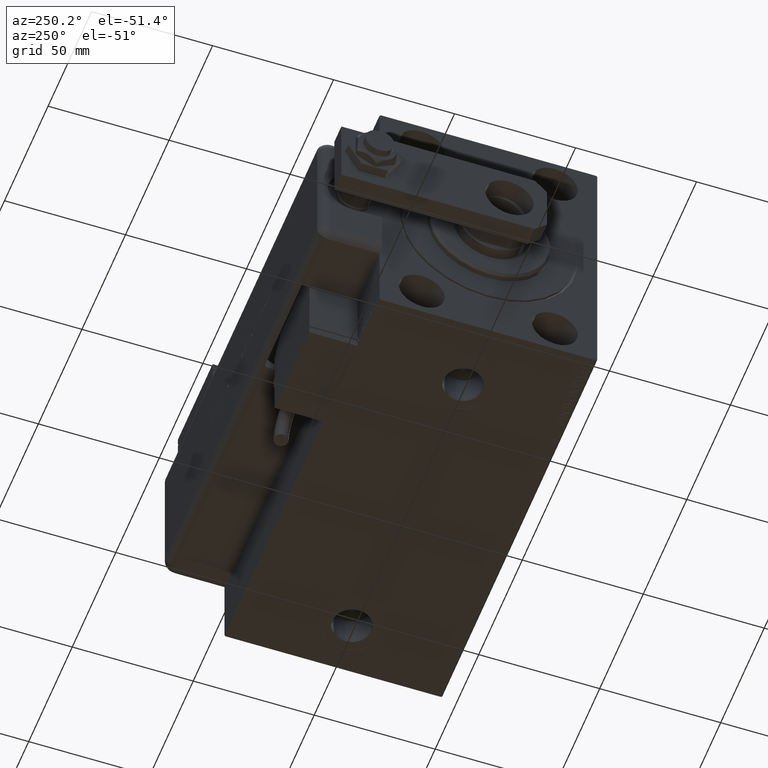
[diagram: clean part render]
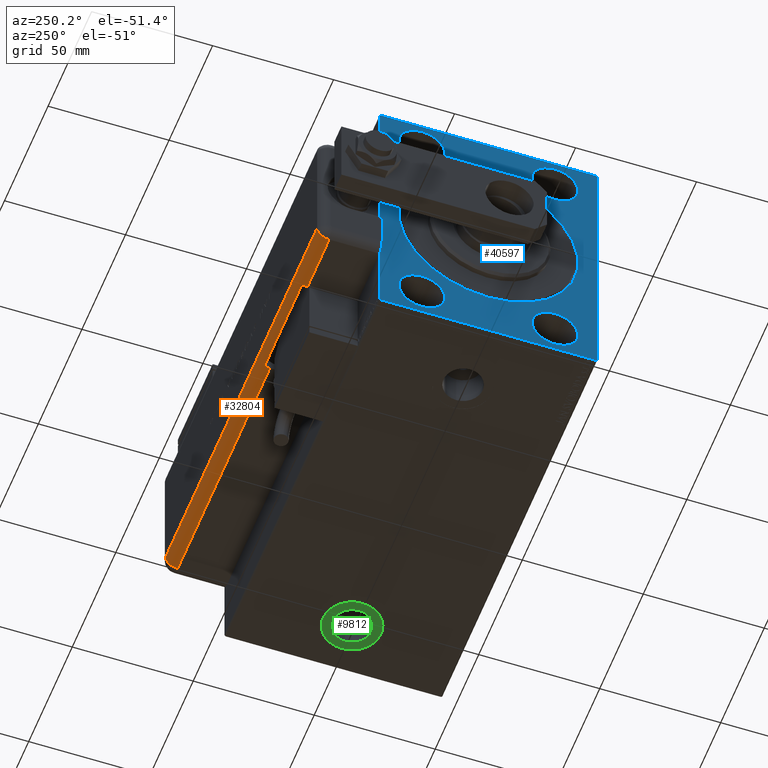
[diagram: same view with three faces highlighted in distinct colors, each labeled with its STEP entity id]
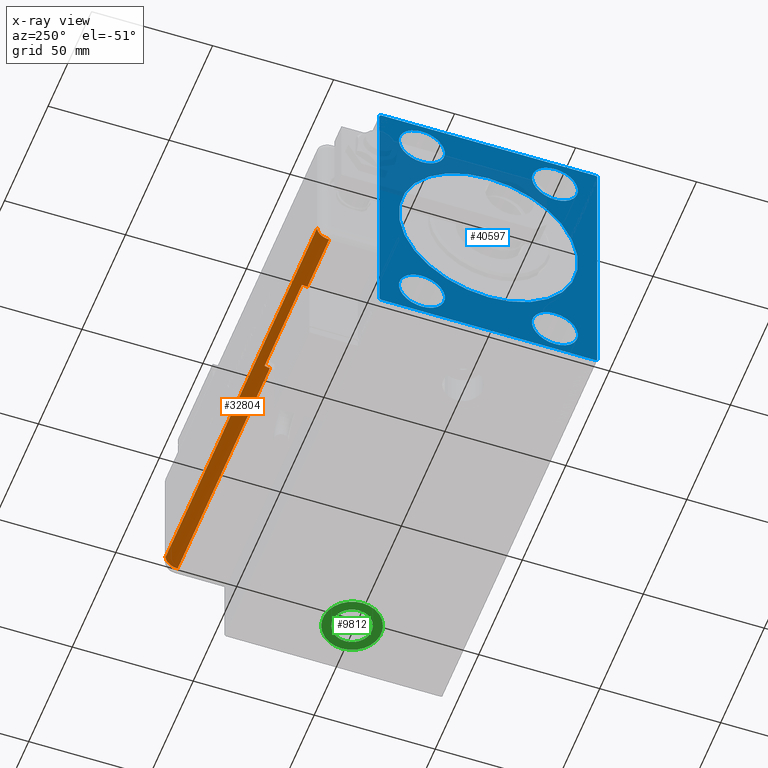
[diagram: x-ray of the same camera — body ghosted, the three highlighted faces saturated]
A machine part, auxiliary view with three faces highlighted in distinct colors.
The next image is the same camera in x-ray (body ghosted, the three faces saturated) — at least one of them is partly hidden behind the body in this view.
Their STEP definitions:

[orange] entity #32804 — the highlighted cylindrical surface (edge-blend (fillet) strip) has radius 5 mm, axis along (1, -0, -0).
#244 = EDGE_CURVE ( 'NONE', #31058, #17575, #6631, .T. ) ;
#3024 = VECTOR ( 'NONE', #16790, 1000.000000000000000 ) ;
#4208 = DIRECTION ( 'NONE',  ( -1.000000000000000000, -3.469446951953613400E-15, 0.000000000000000000 ) ) ;
#4451 = AXIS2_PLACEMENT_3D ( 'NONE', #19884, #38740, #52978 ) ;
#4942 = DIRECTION ( 'NONE',  ( 1.000000000000000000, 0.000000000000000000, 0.000000000000000000 ) ) ;
#5122 = DIRECTION ( 'NONE',  ( -0.000000000000000000, -0.000000000000000000, 1.000000000000000000 ) ) ;
#5365 = VERTEX_POINT ( 'NONE', #35357 ) ;
#6402 = ORIENTED_EDGE ( 'NONE', *, *, #39358, .F. ) ;
#6631 = LINE ( 'NONE', #30991, #3024 ) ;
#7991 = DIRECTION ( 'NONE',  ( -1.000000000000000000, 0.000000000000000000, 0.000000000000000000 ) ) ;
#8177 = LINE ( 'NONE', #45844, #55036 ) ;
#8446 = EDGE_CURVE ( 'NONE', #25036, #5365, #25777, .T. ) ;
#10067 = EDGE_CURVE ( 'NONE', #19808, #31058, #51580, .T. ) ;
#10353 = ORIENTED_EDGE ( 'NONE', *, *, #8446, .F. ) ;
#13773 = CARTESIAN_POINT ( 'NONE',  ( -24.00000000000000000, 20.79999999999998650, 111.0000000000000000 ) ) ;
#15585 = ORIENTED_EDGE ( 'NONE', *, *, #50503, .T. ) ;
#15873 = EDGE_CURVE ( 'NONE', #17575, #30170, #18215, .T. ) ;
#16790 = DIRECTION ( 'NONE',  ( 0.000000000000000000, 0.000000000000000000, -1.000000000000000000 ) ) ;
#17575 = VERTEX_POINT ( 'NONE', #21227 ) ;
#17825 = DIRECTION ( 'NONE',  ( 0.000000000000000000, 0.000000000000000000, -1.000000000000000000 ) ) ;
#18215 = CIRCLE ( 'NONE', #58773, 5.000000000000000888 ) ;
#18354 = EDGE_CURVE ( 'NONE', #43655, #19808, #53100, .T. ) ;
#19808 = VERTEX_POINT ( 'NONE', #27664 ) ;
#19884 = CARTESIAN_POINT ( 'NONE',  ( -24.00000000000000000, 20.79999999999998650, 5.000000000000004441 ) ) ;
#21227 = CARTESIAN_POINT ( 'NONE',  ( -28.48998886412872622, 22.99999999999998934, 111.0000000000000000 ) ) ;
#21721 = ORIENTED_EDGE ( 'NONE', *, *, #15873, .F. ) ;
#23081 = DIRECTION ( 'NONE',  ( -0.000000000000000000, -0.000000000000000000, 1.000000000000000000 ) ) ;
#23141 = CIRCLE ( 'NONE', #4451, 5.000000000000000888 ) ;
#23985 = EDGE_CURVE ( 'NONE', #30170, #43517, #8177, .T. ) ;
#25036 = VERTEX_POINT ( 'NONE', #56725 ) ;
#25777 = LINE ( 'NONE', #44648, #52507 ) ;
#26577 = ORIENTED_EDGE ( 'NONE', *, *, #10067, .F. ) ;
#27069 = FACE_OUTER_BOUND ( 'NONE', #30153, .T. ) ;
#27664 = CARTESIAN_POINT ( 'NONE',  ( -28.99999999999999645, 20.79999999999998650, 154.0000000000000000 ) ) ;
#30153 = EDGE_LOOP ( 'NONE', ( #21721, #46695, #26577, #52616, #6402, #10353, #15585, #30923 ) ) ;
#30170 = VERTEX_POINT ( 'NONE', #31036 ) ;
#30923 = ORIENTED_EDGE ( 'NONE', *, *, #23985, .F. ) ;
#30991 = CARTESIAN_POINT ( 'NONE',  ( -28.48998886412872622, 22.99999999999998934, 179.0000000000000000 ) ) ;
#31036 = CARTESIAN_POINT ( 'NONE',  ( -28.99999999999999645, 20.79999999999998650, 111.0000000000000000 ) ) ;
#31058 = VERTEX_POINT ( 'NONE', #39486 ) ;
#32804 = ADVANCED_FACE ( 'NONE', ( #27069 ), #45945, .T. ) ;
#33302 = CARTESIAN_POINT ( 'NONE',  ( -28.99999999999999645, 20.79999999999998650, 5.000000000000004441 ) ) ;
#34221 = CARTESIAN_POINT ( 'NONE',  ( -28.99999999999999645, 20.79999999999998650, 179.0000000000000000 ) ) ;
#35357 = CARTESIAN_POINT ( 'NONE',  ( -24.00000000000000000, 25.79999999999998295, 179.0000000000000000 ) ) ;
#37505 = DIRECTION ( 'NONE',  ( -0.000000000000000000, -0.000000000000000000, 1.000000000000000000 ) ) ;
#38740 = DIRECTION ( 'NONE',  ( -0.000000000000000000, -0.000000000000000000, 1.000000000000000000 ) ) ;
#39358 = EDGE_CURVE ( 'NONE', #5365, #43655, #56444, .T. ) ;
#39486 = CARTESIAN_POINT ( 'NONE',  ( -28.48998886412872622, 22.99999999999998934, 154.0000000000000000 ) ) ;
#39693 = AXIS2_PLACEMENT_3D ( 'NONE', #47255, #52800, #4942 ) ;
#39784 = DIRECTION ( 'NONE',  ( 0.000000000000000000, 0.000000000000000000, -1.000000000000000000 ) ) ;
#40199 = VECTOR ( 'NONE', #39784, 1000.000000000000000 ) ;
#41302 = CARTESIAN_POINT ( 'NONE',  ( -24.00000000000000000, 20.79999999999998650, 179.0000000000000000 ) ) ;
#43517 = VERTEX_POINT ( 'NONE', #33302 ) ;
#43655 = VERTEX_POINT ( 'NONE', #54597 ) ;
#44648 = CARTESIAN_POINT ( 'NONE',  ( -24.00000000000000000, 25.79999999999998295, 179.0000000000000000 ) ) ;
#45565 = DIRECTION ( 'NONE',  ( -1.000000000000000000, 0.000000000000000000, 0.000000000000000000 ) ) ;
#45844 = CARTESIAN_POINT ( 'NONE',  ( -28.99999999999999645, 20.79999999999998650, 179.0000000000000000 ) ) ;
#45945 = CYLINDRICAL_SURFACE ( 'NONE', #50264, 5.000000000000000888 ) ;
#46539 = AXIS2_PLACEMENT_3D ( 'NONE', #55875, #23081, #7991 ) ;
#46695 = ORIENTED_EDGE ( 'NONE', *, *, #244, .F. ) ;
#47255 = CARTESIAN_POINT ( 'NONE',  ( -24.00000000000000000, 20.79999999999998650, 154.0000000000000000 ) ) ;
#50264 = AXIS2_PLACEMENT_3D ( 'NONE', #41302, #17825, #45565 ) ;
#50503 = EDGE_CURVE ( 'NONE', #25036, #43517, #23141, .T. ) ;
#51580 = CIRCLE ( 'NONE', #39693, 5.000000000000000888 ) ;
#52507 = VECTOR ( 'NONE', #37505, 1000.000000000000000 ) ;
#52616 = ORIENTED_EDGE ( 'NONE', *, *, #18354, .F. ) ;
#52800 = DIRECTION ( 'NONE',  ( 0.000000000000000000, -0.000000000000000000, -1.000000000000000000 ) ) ;
#52978 = DIRECTION ( 'NONE',  ( -1.000000000000000000, 0.000000000000000000, 0.000000000000000000 ) ) ;
#53100 = LINE ( 'NONE', #34221, #40199 ) ;
#54597 = CARTESIAN_POINT ( 'NONE',  ( -28.99999999999999645, 20.79999999999998650, 179.0000000000000000 ) ) ;
#55036 = VECTOR ( 'NONE', #60079, 1000.000000000000000 ) ;
#55875 = CARTESIAN_POINT ( 'NONE',  ( -24.00000000000000000, 20.79999999999998650, 179.0000000000000000 ) ) ;
#56444 = CIRCLE ( 'NONE', #46539, 5.000000000000000888 ) ;
#56725 = CARTESIAN_POINT ( 'NONE',  ( -24.00000000000000000, 25.79999999999998295, 5.000000000000004441 ) ) ;
#58773 = AXIS2_PLACEMENT_3D ( 'NONE', #13773, #5122, #4208 ) ;
#60079 = DIRECTION ( 'NONE',  ( 0.000000000000000000, 0.000000000000000000, -1.000000000000000000 ) ) ;

[blue] entity #40597 — the highlighted planar face has unit normal (1, 0, 0).
#543 = CIRCLE ( 'NONE', #43921, 9.500000000000001776 ) ;
#629 = VECTOR ( 'NONE', #52169, 1000.000000000000000 ) ;
#1013 = DIRECTION ( 'NONE',  ( 1.000000000000000000, 0.000000000000000000, 0.000000000000000000 ) ) ;
#1079 = FACE_BOUND ( 'NONE', #16192, .T. ) ;
#1257 = DIRECTION ( 'NONE',  ( 0.000000000000000000, 1.000000000000000000, 0.000000000000000000 ) ) ;
#1864 = CARTESIAN_POINT ( 'NONE',  ( 0.000000000000000000, -45.00000000000000000, -57.00000000000006395 ) ) ;
#2257 = EDGE_CURVE ( 'NONE', #60265, #54468, #37580, .T. ) ;
#2910 = LINE ( 'NONE', #53291, #35331 ) ;
#2979 = EDGE_LOOP ( 'NONE', ( #24383, #9767 ) ) ;
#3518 = DIRECTION ( 'NONE',  ( 0.000000000000000000, 0.000000000000000000, 1.000000000000000000 ) ) ;
#4029 = CARTESIAN_POINT ( 'NONE',  ( 0.000000000000000000, 27.50000000000001066, 45.00000000000000711 ) ) ;
#4035 = VERTEX_POINT ( 'NONE', #41303 ) ;
#4249 = ORIENTED_EDGE ( 'NONE', *, *, #12670, .F. ) ;
#4295 = LINE ( 'NONE', #33298, #629 ) ;
#6577 = DIRECTION ( 'NONE',  ( 0.000000000000000000, 0.000000000000000000, -1.000000000000000000 ) ) ;
#6651 = VECTOR ( 'NONE', #12756, 1000.000000000000114 ) ;
#6689 = CARTESIAN_POINT ( 'NONE',  ( 0.000000000000000000, 45.00000000000001421, -57.50000000000000711 ) ) ;
#6914 = LINE ( 'NONE', #45488, #6651 ) ;
#9247 = CARTESIAN_POINT ( 'NONE',  ( 0.000000000000000000, 27.50000000000001066, 54.50000000000000711 ) ) ;
#9580 = CARTESIAN_POINT ( 'NONE',  ( 0.000000000000000000, -27.49999999999998934, 35.50000000000000711 ) ) ;
#9591 = EDGE_CURVE ( 'NONE', #54468, #60265, #35755, .T. ) ;
#9767 = ORIENTED_EDGE ( 'NONE', *, *, #52390, .F. ) ;
#10547 = EDGE_CURVE ( 'NONE', #41496, #38156, #53041, .T. ) ;
#10725 = ORIENTED_EDGE ( 'NONE', *, *, #10547, .F. ) ;
#11587 = VECTOR ( 'NONE', #24281, 1000.000000000000000 ) ;
#11843 = DIRECTION ( 'NONE',  ( 1.000000000000000000, 0.000000000000000000, 0.000000000000000000 ) ) ;
#12007 = ORIENTED_EDGE ( 'NONE', *, *, #13268, .T. ) ;
#12670 = EDGE_CURVE ( 'NONE', #36534, #14899, #30947, .T. ) ;
#12756 = DIRECTION ( 'NONE',  ( -0.000000000000000000, 0.7071067811865474617, 0.7071067811865474617 ) ) ;
#12873 = CARTESIAN_POINT ( 'NONE',  ( 0.000000000000000000, -27.50000000000000000, -44.99999999999998579 ) ) ;
#13184 = ORIENTED_EDGE ( 'NONE', *, *, #57810, .T. ) ;
#13268 = EDGE_CURVE ( 'NONE', #41496, #53079, #23910, .T. ) ;
#13400 = CARTESIAN_POINT ( 'NONE',  ( 0.000000000000000000, -27.49999999999998934, 45.00000000000000711 ) ) ;
#13662 = CIRCLE ( 'NONE', #34356, 9.500000000000001776 ) ;
#13849 = FACE_BOUND ( 'NONE', #2979, .T. ) ;
#14111 = EDGE_LOOP ( 'NONE', ( #56965, #37010, #54878, #50716, #10725, #12007, #39491, #13184 ) ) ;
#14357 = CARTESIAN_POINT ( 'NONE',  ( 0.000000000000000000, -27.49999999999998934, 54.50000000000000711 ) ) ;
#14899 = VERTEX_POINT ( 'NONE', #17772 ) ;
#15061 = ORIENTED_EDGE ( 'NONE', *, *, #56293, .F. ) ;
#15097 = DIRECTION ( 'NONE',  ( 0.000000000000000000, 0.000000000000000000, 1.000000000000000000 ) ) ;
#15476 = CARTESIAN_POINT ( 'NONE',  ( 0.000000000000000000, -27.49999999999998934, 45.00000000000000711 ) ) ;
#16192 = EDGE_LOOP ( 'NONE', ( #34846, #29005 ) ) ;
#17141 = VERTEX_POINT ( 'NONE', #22894 ) ;
#17705 = DIRECTION ( 'NONE',  ( -1.000000000000000000, 0.000000000000000000, 0.000000000000000000 ) ) ;
#17772 = CARTESIAN_POINT ( 'NONE',  ( 0.000000000000000000, 27.49999999999998934, -54.49999999999998579 ) ) ;
#18030 = EDGE_LOOP ( 'NONE', ( #32456, #15061 ) ) ;
#18223 = DIRECTION ( 'NONE',  ( -1.000000000000000000, 0.000000000000000000, 0.000000000000000000 ) ) ;
#18369 = CIRCLE ( 'NONE', #27212, 9.500000000000001776 ) ;
#19057 = CARTESIAN_POINT ( 'NONE',  ( 0.000000000000000000, -45.00000000000000000, 57.49999999999999289 ) ) ;
#19288 = CARTESIAN_POINT ( 'NONE',  ( 0.000000000000000000, 45.00000000000001421, -57.00000000000003553 ) ) ;
#19412 = AXIS2_PLACEMENT_3D ( 'NONE', #25283, #58383, #33953 ) ;
#19605 = DIRECTION ( 'NONE',  ( 1.000000000000000000, 0.000000000000000000, 0.000000000000000000 ) ) ;
#20016 = DIRECTION ( 'NONE',  ( -1.000000000000000000, 0.000000000000000000, 0.000000000000000000 ) ) ;
#20478 = DIRECTION ( 'NONE',  ( 0.000000000000000000, 0.000000000000000000, -1.000000000000000000 ) ) ;
#20809 = DIRECTION ( 'NONE',  ( 0.000000000000000000, -1.000000000000000000, -1.541976423090495387E-16 ) ) ;
#20861 = EDGE_CURVE ( 'NONE', #17141, #50837, #18369, .T. ) ;
#21142 = CARTESIAN_POINT ( 'NONE',  ( 0.000000000000000000, -27.50000000000000000, -44.99999999999998579 ) ) ;
#21767 = AXIS2_PLACEMENT_3D ( 'NONE', #37016, #19605, #43095 ) ;
#21864 = CARTESIAN_POINT ( 'NONE',  ( 0.000000000000000000, 45.00000000000001421, -57.00000000000003553 ) ) ;
#22341 = LINE ( 'NONE', #45838, #47939 ) ;
#22407 = EDGE_CURVE ( 'NONE', #26641, #26553, #34218, .T. ) ;
#22894 = CARTESIAN_POINT ( 'NONE',  ( 0.000000000000000000, -27.50000000000000000, -35.49999999999998579 ) ) ;
#23373 = EDGE_LOOP ( 'NONE', ( #4249, #46582 ) ) ;
#23454 = CARTESIAN_POINT ( 'NONE',  ( 0.000000000000000000, 44.50000000000004263, -57.50000000000000711 ) ) ;
#23895 = AXIS2_PLACEMENT_3D ( 'NONE', #44886, #11843, #20478 ) ;
#23910 = LINE ( 'NONE', #19288, #59599 ) ;
#24231 = PLANE ( 'NONE',  #21767 ) ;
#24281 = DIRECTION ( 'NONE',  ( 0.000000000000000000, 0.000000000000000000, -1.000000000000000000 ) ) ;
#24383 = ORIENTED_EDGE ( 'NONE', *, *, #20861, .F. ) ;
#24957 = CARTESIAN_POINT ( 'NONE',  ( 0.000000000000000000, 27.49999999999998934, -44.99999999999998579 ) ) ;
#25283 = CARTESIAN_POINT ( 'NONE',  ( 0.000000000000000000, 27.50000000000001066, 45.00000000000000711 ) ) ;
#25431 = DIRECTION ( 'NONE',  ( 0.000000000000000000, -0.7071067811865279218, -0.7071067811865671127 ) ) ;
#26553 = VERTEX_POINT ( 'NONE', #27741 ) ;
#26641 = VERTEX_POINT ( 'NONE', #9247 ) ;
#27101 = AXIS2_PLACEMENT_3D ( 'NONE', #12873, #31074, #54895 ) ;
#27212 = AXIS2_PLACEMENT_3D ( 'NONE', #21142, #39999, #58876 ) ;
#27517 = CARTESIAN_POINT ( 'NONE',  ( 0.000000000000000000, 27.49999999999998934, -44.99999999999998579 ) ) ;
#27741 = CARTESIAN_POINT ( 'NONE',  ( 0.000000000000000000, 27.50000000000001066, 35.50000000000000711 ) ) ;
#27780 = EDGE_CURVE ( 'NONE', #49402, #29290, #6914, .T. ) ;
#28450 = AXIS2_PLACEMENT_3D ( 'NONE', #15476, #54402, #29965 ) ;
#28522 = EDGE_CURVE ( 'NONE', #49402, #60908, #57086, .T. ) ;
#29005 = ORIENTED_EDGE ( 'NONE', *, *, #2257, .T. ) ;
#29181 = VERTEX_POINT ( 'NONE', #32430 ) ;
#29290 = VERTEX_POINT ( 'NONE', #50318 ) ;
#29775 = EDGE_CURVE ( 'NONE', #29181, #29290, #2910, .T. ) ;
#29897 = EDGE_CURVE ( 'NONE', #45421, #44782, #13662, .T. ) ;
#29965 = DIRECTION ( 'NONE',  ( 0.000000000000000000, 0.000000000000000000, 1.000000000000000000 ) ) ;
#30795 = EDGE_CURVE ( 'NONE', #44782, #45421, #52163, .T. ) ;
#30947 = CIRCLE ( 'NONE', #41823, 9.500000000000001776 ) ;
#31074 = DIRECTION ( 'NONE',  ( -1.000000000000000000, 0.000000000000000000, 0.000000000000000000 ) ) ;
#32430 = CARTESIAN_POINT ( 'NONE',  ( 0.000000000000000000, 44.50000000000002842, 57.50000000000000711 ) ) ;
#32456 = ORIENTED_EDGE ( 'NONE', *, *, #22407, .F. ) ;
#33166 = CARTESIAN_POINT ( 'NONE',  ( 0.000000000000000000, 27.49999999999998934, -35.49999999999998579 ) ) ;
#33298 = CARTESIAN_POINT ( 'NONE',  ( 0.000000000000000000, 44.50000000000002842, 57.50000000000000711 ) ) ;
#33953 = DIRECTION ( 'NONE',  ( 0.000000000000000000, 0.000000000000000000, 1.000000000000000000 ) ) ;
#34095 = ORIENTED_EDGE ( 'NONE', *, *, #30795, .F. ) ;
#34218 = CIRCLE ( 'NONE', #19412, 9.500000000000001776 ) ;
#34356 = AXIS2_PLACEMENT_3D ( 'NONE', #13400, #17705, #3518 ) ;
#34383 = CARTESIAN_POINT ( 'NONE',  ( 0.000000000000000000, -45.00000000000000000, 56.99999999999999289 ) ) ;
#34846 = ORIENTED_EDGE ( 'NONE', *, *, #9591, .T. ) ;
#35331 = VECTOR ( 'NONE', #20809, 1000.000000000000000 ) ;
#35755 = CIRCLE ( 'NONE', #23895, 37.00000000000003553 ) ;
#36534 = VERTEX_POINT ( 'NONE', #33166 ) ;
#36710 = FACE_BOUND ( 'NONE', #43989, .T. ) ;
#36801 = DIRECTION ( 'NONE',  ( -1.000000000000000000, 0.000000000000000000, 0.000000000000000000 ) ) ;
#37010 = ORIENTED_EDGE ( 'NONE', *, *, #27780, .T. ) ;
#37016 = CARTESIAN_POINT ( 'NONE',  ( 0.000000000000000000, 0.000000000000000000, 0.000000000000000000 ) ) ;
#37069 = DIRECTION ( 'NONE',  ( 0.000000000000000000, 0.000000000000000000, 1.000000000000000000 ) ) ;
#37126 = EDGE_CURVE ( 'NONE', #4035, #53079, #38335, .T. ) ;
#37580 = CIRCLE ( 'NONE', #44509, 37.00000000000003553 ) ;
#38144 = CARTESIAN_POINT ( 'NONE',  ( 0.000000000000000000, 0.000000000000000000, 37.00000000000003553 ) ) ;
#38156 = VERTEX_POINT ( 'NONE', #56541 ) ;
#38335 = LINE ( 'NONE', #38632, #50432 ) ;
#38632 = CARTESIAN_POINT ( 'NONE',  ( 0.000000000000000000, -45.00000000000000000, -57.50000000000000711 ) ) ;
#39491 = ORIENTED_EDGE ( 'NONE', *, *, #37126, .F. ) ;
#39574 = CARTESIAN_POINT ( 'NONE',  ( 0.000000000000000000, -27.50000000000000000, -54.49999999999998579 ) ) ;
#39999 = DIRECTION ( 'NONE',  ( -1.000000000000000000, 0.000000000000000000, 0.000000000000000000 ) ) ;
#40085 = AXIS2_PLACEMENT_3D ( 'NONE', #27517, #36801, #58565 ) ;
#40304 = CARTESIAN_POINT ( 'NONE',  ( 0.000000000000000000, 4.531193156845210737E-15, -37.00000000000003553 ) ) ;
#40597 = ADVANCED_FACE ( 'NONE', ( #1079, #56191, #36710, #55581, #13849, #51554 ), #24231, .F. ) ;
#40745 = VECTOR ( 'NONE', #58286, 1000.000000000000000 ) ;
#41303 = CARTESIAN_POINT ( 'NONE',  ( 0.000000000000000000, -44.50000000000002842, -57.50000000000000711 ) ) ;
#41496 = VERTEX_POINT ( 'NONE', #21864 ) ;
#41823 = AXIS2_PLACEMENT_3D ( 'NONE', #24957, #20016, #15097 ) ;
#43095 = DIRECTION ( 'NONE',  ( 0.000000000000000000, 0.000000000000000000, -1.000000000000000000 ) ) ;
#43335 = CARTESIAN_POINT ( 'NONE',  ( 0.000000000000000000, 0.000000000000000000, 0.000000000000000000 ) ) ;
#43921 = AXIS2_PLACEMENT_3D ( 'NONE', #4029, #18223, #37069 ) ;
#43989 = EDGE_LOOP ( 'NONE', ( #59989, #34095 ) ) ;
#44509 = AXIS2_PLACEMENT_3D ( 'NONE', #43335, #1013, #6577 ) ;
#44782 = VERTEX_POINT ( 'NONE', #9580 ) ;
#44886 = CARTESIAN_POINT ( 'NONE',  ( 0.000000000000000000, 0.000000000000000000, 0.000000000000000000 ) ) ;
#45421 = VERTEX_POINT ( 'NONE', #14357 ) ;
#45488 = CARTESIAN_POINT ( 'NONE',  ( 0.000000000000000000, -45.00000000000000000, 56.99999999999999289 ) ) ;
#45838 = CARTESIAN_POINT ( 'NONE',  ( 0.000000000000000000, -44.50000000000002842, -57.50000000000000711 ) ) ;
#46582 = ORIENTED_EDGE ( 'NONE', *, *, #59184, .F. ) ;
#47939 = VECTOR ( 'NONE', #51114, 1000.000000000000000 ) ;
#49402 = VERTEX_POINT ( 'NONE', #34383 ) ;
#50318 = CARTESIAN_POINT ( 'NONE',  ( 0.000000000000000000, -44.49999999999997158, 57.49999999999999289 ) ) ;
#50432 = VECTOR ( 'NONE', #1257, 1000.000000000000000 ) ;
#50716 = ORIENTED_EDGE ( 'NONE', *, *, #58500, .T. ) ;
#50837 = VERTEX_POINT ( 'NONE', #39574 ) ;
#51114 = DIRECTION ( 'NONE',  ( -0.000000000000000000, -0.7071067811865671127, 0.7071067811865279218 ) ) ;
#51554 = FACE_OUTER_BOUND ( 'NONE', #14111, .T. ) ;
#52163 = CIRCLE ( 'NONE', #28450, 9.500000000000001776 ) ;
#52169 = DIRECTION ( 'NONE',  ( -0.000000000000000000, 0.7071067811865671127, -0.7071067811865279218 ) ) ;
#52390 = EDGE_CURVE ( 'NONE', #50837, #17141, #56750, .T. ) ;
#53041 = LINE ( 'NONE', #6689, #40745 ) ;
#53079 = VERTEX_POINT ( 'NONE', #23454 ) ;
#53291 = CARTESIAN_POINT ( 'NONE',  ( 0.000000000000000000, 45.00000000000000000, 57.50000000000000711 ) ) ;
#54402 = DIRECTION ( 'NONE',  ( -1.000000000000000000, 0.000000000000000000, 0.000000000000000000 ) ) ;
#54468 = VERTEX_POINT ( 'NONE', #38144 ) ;
#54878 = ORIENTED_EDGE ( 'NONE', *, *, #29775, .F. ) ;
#54895 = DIRECTION ( 'NONE',  ( 0.000000000000000000, 0.000000000000000000, 1.000000000000000000 ) ) ;
#55581 = FACE_BOUND ( 'NONE', #18030, .T. ) ;
#56191 = FACE_BOUND ( 'NONE', #23373, .T. ) ;
#56293 = EDGE_CURVE ( 'NONE', #26553, #26641, #543, .T. ) ;
#56541 = CARTESIAN_POINT ( 'NONE',  ( 0.000000000000000000, 45.00000000000000000, 57.00000000000003553 ) ) ;
#56750 = CIRCLE ( 'NONE', #27101, 9.500000000000001776 ) ;
#56965 = ORIENTED_EDGE ( 'NONE', *, *, #28522, .F. ) ;
#57086 = LINE ( 'NONE', #19057, #11587 ) ;
#57810 = EDGE_CURVE ( 'NONE', #4035, #60908, #22341, .T. ) ;
#58286 = DIRECTION ( 'NONE',  ( 0.000000000000000000, -1.206764157201257045E-16, 1.000000000000000000 ) ) ;
#58383 = DIRECTION ( 'NONE',  ( -1.000000000000000000, 0.000000000000000000, 0.000000000000000000 ) ) ;
#58500 = EDGE_CURVE ( 'NONE', #29181, #38156, #4295, .T. ) ;
#58565 = DIRECTION ( 'NONE',  ( 0.000000000000000000, 0.000000000000000000, 1.000000000000000000 ) ) ;
#58876 = DIRECTION ( 'NONE',  ( 0.000000000000000000, 0.000000000000000000, 1.000000000000000000 ) ) ;
#59184 = EDGE_CURVE ( 'NONE', #14899, #36534, #60841, .T. ) ;
#59599 = VECTOR ( 'NONE', #25431, 1000.000000000000000 ) ;
#59989 = ORIENTED_EDGE ( 'NONE', *, *, #29897, .F. ) ;
#60265 = VERTEX_POINT ( 'NONE', #40304 ) ;
#60841 = CIRCLE ( 'NONE', #40085, 9.500000000000001776 ) ;
#60908 = VERTEX_POINT ( 'NONE', #1864 ) ;

[green] entity #9812 — the highlighted planar face has unit normal (0, 0, -1).
#1300 = DIRECTION ( 'NONE',  ( 0.000000000000000000, 0.000000000000000000, -1.000000000000000000 ) ) ;
#1328 = CARTESIAN_POINT ( 'NONE',  ( 168.5000000000000000, -1.819681485811493154E-14, -57.40000000000000568 ) ) ;
#2626 = VERTEX_POINT ( 'NONE', #1328 ) ;
#3456 = AXIS2_PLACEMENT_3D ( 'NONE', #44534, #1300, #20115 ) ;
#5849 = CARTESIAN_POINT ( 'NONE',  ( 144.5000000000000000, -1.966639101709175332E-14, -57.40000000000000568 ) ) ;
#7460 = ORIENTED_EDGE ( 'NONE', *, *, #49785, .F. ) ;
#9169 = AXIS2_PLACEMENT_3D ( 'NONE', #14576, #28764, #47636 ) ;
#9812 = ADVANCED_FACE ( 'NONE', ( #42984, #38347 ), #38048, .T. ) ;
#10585 = EDGE_LOOP ( 'NONE', ( #51330, #37450 ) ) ;
#10613 = DIRECTION ( 'NONE',  ( 0.000000000000000000, 0.000000000000000000, -1.000000000000000000 ) ) ;
#12650 = VERTEX_POINT ( 'NONE', #5849 ) ;
#13113 = EDGE_CURVE ( 'NONE', #48011, #22091, #19138, .T. ) ;
#14576 = CARTESIAN_POINT ( 'NONE',  ( 156.5000000000000000, -1.966639101709175332E-14, -57.40000000000000568 ) ) ;
#15674 = CARTESIAN_POINT ( 'NONE',  ( 164.5850000000000080, -1.867626407998111737E-14, -57.40000000000000568 ) ) ;
#17156 = DIRECTION ( 'NONE',  ( 0.000000000000000000, 0.000000000000000000, -1.000000000000000000 ) ) ;
#19138 = CIRCLE ( 'NONE', #25025, 8.085000000000007958 ) ;
#19789 = AXIS2_PLACEMENT_3D ( 'NONE', #19850, #10613, #29717 ) ;
#19850 = CARTESIAN_POINT ( 'NONE',  ( 156.5000000000000000, -1.966639101709175332E-14, -57.40000000000000568 ) ) ;
#20115 = DIRECTION ( 'NONE',  ( -1.000000000000000000, 0.000000000000000000, 0.000000000000000000 ) ) ;
#22091 = VERTEX_POINT ( 'NONE', #44531 ) ;
#25025 = AXIS2_PLACEMENT_3D ( 'NONE', #45276, #17156, #26109 ) ;
#25723 = DIRECTION ( 'NONE',  ( -1.000000000000000000, 0.000000000000000000, 0.000000000000000000 ) ) ;
#26109 = DIRECTION ( 'NONE',  ( -1.000000000000000000, 0.000000000000000000, 0.000000000000000000 ) ) ;
#28764 = DIRECTION ( 'NONE',  ( 0.000000000000000000, 0.000000000000000000, -1.000000000000000000 ) ) ;
#29717 = DIRECTION ( 'NONE',  ( -1.000000000000000000, 0.000000000000000000, 0.000000000000000000 ) ) ;
#30353 = DIRECTION ( 'NONE',  ( 0.000000000000000000, 0.000000000000000000, -1.000000000000000000 ) ) ;
#36831 = EDGE_CURVE ( 'NONE', #12650, #2626, #53383, .T. ) ;
#37450 = ORIENTED_EDGE ( 'NONE', *, *, #54980, .T. ) ;
#38048 = PLANE ( 'NONE',  #9169 ) ;
#38347 = FACE_OUTER_BOUND ( 'NONE', #10585, .T. ) ;
#38893 = CIRCLE ( 'NONE', #46812, 8.085000000000007958 ) ;
#40424 = ORIENTED_EDGE ( 'NONE', *, *, #13113, .F. ) ;
#42984 = FACE_BOUND ( 'NONE', #50544, .T. ) ;
#44531 = CARTESIAN_POINT ( 'NONE',  ( 148.4149999999999920, -1.966639101709175332E-14, -57.40000000000000568 ) ) ;
#44534 = CARTESIAN_POINT ( 'NONE',  ( 156.5000000000000000, -1.966639101709175332E-14, -57.40000000000000568 ) ) ;
#45276 = CARTESIAN_POINT ( 'NONE',  ( 156.5000000000000000, -1.966639101709175332E-14, -57.40000000000000568 ) ) ;
#46812 = AXIS2_PLACEMENT_3D ( 'NONE', #59422, #30353, #25723 ) ;
#47636 = DIRECTION ( 'NONE',  ( -1.000000000000000000, 0.000000000000000000, -0.000000000000000000 ) ) ;
#48011 = VERTEX_POINT ( 'NONE', #15674 ) ;
#49785 = EDGE_CURVE ( 'NONE', #22091, #48011, #38893, .T. ) ;
#50544 = EDGE_LOOP ( 'NONE', ( #7460, #40424 ) ) ;
#51330 = ORIENTED_EDGE ( 'NONE', *, *, #36831, .T. ) ;
#52799 = CIRCLE ( 'NONE', #3456, 12.00000000000001066 ) ;
#53383 = CIRCLE ( 'NONE', #19789, 12.00000000000001066 ) ;
#54980 = EDGE_CURVE ( 'NONE', #2626, #12650, #52799, .T. ) ;
#59422 = CARTESIAN_POINT ( 'NONE',  ( 156.5000000000000000, -1.966639101709175332E-14, -57.40000000000000568 ) ) ;